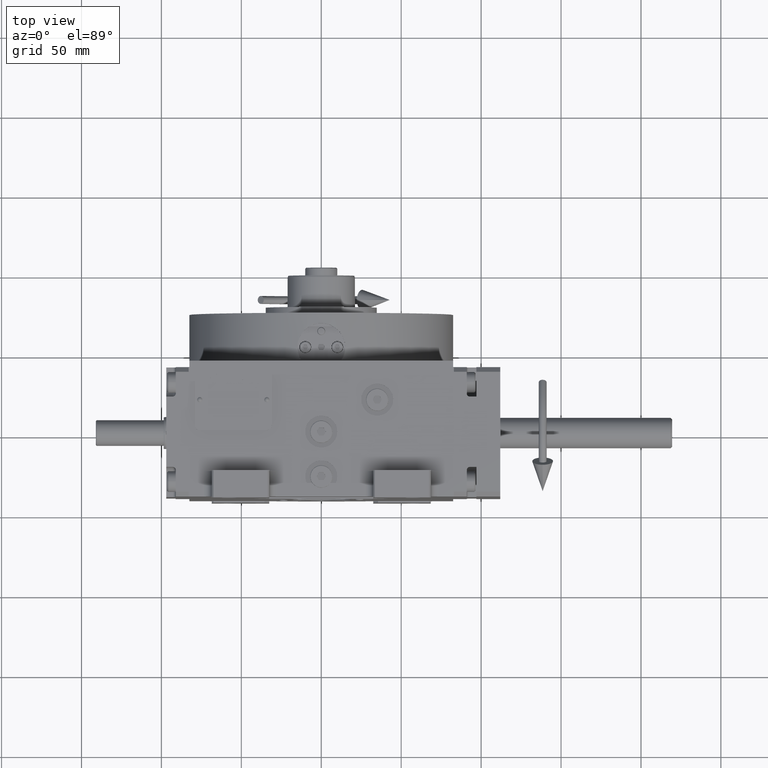
[diagram: clean part render]
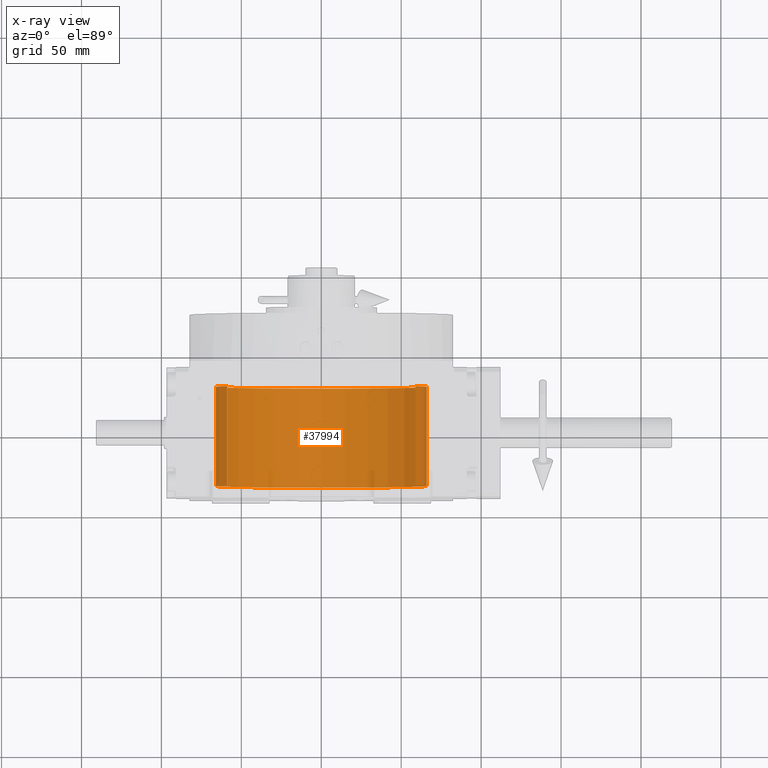
[diagram: x-ray — body ghosted, one internal face saturated and labeled with its STEP entity id]
A machine part, top view, then the same camera in x-ray: the body is ghosted and one INTERNAL B-rep face — a face not visible from any outside direction — is saturated and labeled: STEP entity #37994.
In plain terms, the highlighted cylindrical surface (partial cylindrical patch) has radius 66 mm, axis along (0, 1, 0).
Its self-contained STEP definition (entity closure, byte-faithful):
#1858 = DIRECTION ( 'NONE',  ( 0.000000000000000000, 0.000000000000000000, 1.000000000000000000 ) ) ;
#4154 = ORIENTED_EDGE ( 'NONE', *, *, #35560, .F. ) ;
#5475 = VERTEX_POINT ( 'NONE', #45441 ) ;
#6097 = EDGE_CURVE ( 'NONE', #17162, #5475, #61225, .T. ) ;
#7596 = EDGE_LOOP ( 'NONE', ( #24803, #4154, #48030, #25328 ) ) ;
#10376 = CARTESIAN_POINT ( 'NONE',  ( -58.78775382679628336, 30.00000000000001421, 30.00000000000000000 ) ) ;
#11848 = DIRECTION ( 'NONE',  ( -0.000000000000000000, 1.000000000000000000, -0.000000000000000000 ) ) ;
#12242 = CARTESIAN_POINT ( 'NONE',  ( 0.000000000000000000, 30.00000000000001421, 0.000000000000000000 ) ) ;
#14821 = DIRECTION ( 'NONE',  ( 0.000000000000000000, -1.000000000000000000, 0.000000000000000000 ) ) ;
#15858 = LINE ( 'NONE', #21097, #53240 ) ;
#17162 = VERTEX_POINT ( 'NONE', #35264 ) ;
#21097 = CARTESIAN_POINT ( 'NONE',  ( -58.78775382679628336, 111.8035300579860802, 30.00000000000000000 ) ) ;
#22425 = DIRECTION ( 'NONE',  ( -0.000000000000000000, 1.000000000000000000, -0.000000000000000000 ) ) ;
#23073 = VERTEX_POINT ( 'NONE', #68271 ) ;
#23988 = DIRECTION ( 'NONE',  ( -0.000000000000000000, 1.000000000000000000, -0.000000000000000000 ) ) ;
#24803 = ORIENTED_EDGE ( 'NONE', *, *, #44544, .T. ) ;
#25328 = ORIENTED_EDGE ( 'NONE', *, *, #64789, .T. ) ;
#26039 = CARTESIAN_POINT ( 'NONE',  ( 0.000000000000000000, -31.99999999999998579, 0.000000000000000000 ) ) ;
#27918 = VECTOR ( 'NONE', #23988, 1000.000000000000000 ) ;
#33453 = CARTESIAN_POINT ( 'NONE',  ( 58.78775382679628336, 111.8035300579860802, 30.00000000000000000 ) ) ;
#33457 = CYLINDRICAL_SURFACE ( 'NONE', #56062, 66.00000000000000000 ) ;
#33660 = DIRECTION ( 'NONE',  ( 0.000000000000000000, 0.000000000000000000, 1.000000000000000000 ) ) ;
#34498 = CARTESIAN_POINT ( 'NONE',  ( 0.000000000000000000, 111.8035300579860802, 0.000000000000000000 ) ) ;
#35264 = CARTESIAN_POINT ( 'NONE',  ( 58.78775382679628336, -31.99999999999998579, 30.00000000000000000 ) ) ;
#35560 = EDGE_CURVE ( 'NONE', #17162, #23073, #38221, .T. ) ;
#37680 = CIRCLE ( 'NONE', #55658, 66.00000000000000000 ) ;
#37994 = ADVANCED_FACE ( 'NONE', ( #39052 ), #33457, .F. ) ;
#38221 = CIRCLE ( 'NONE', #52844, 66.00000000000000000 ) ;
#39052 = FACE_OUTER_BOUND ( 'NONE', #7596, .T. ) ;
#44544 = EDGE_CURVE ( 'NONE', #60772, #23073, #15858, .T. ) ;
#45441 = CARTESIAN_POINT ( 'NONE',  ( 58.78775382679628336, 30.00000000000001421, 30.00000000000000000 ) ) ;
#47448 = DIRECTION ( 'NONE',  ( 0.000000000000000000, 0.000000000000000000, 1.000000000000000000 ) ) ;
#48030 = ORIENTED_EDGE ( 'NONE', *, *, #6097, .T. ) ;
#49978 = DIRECTION ( 'NONE',  ( -0.000000000000000000, 1.000000000000000000, -0.000000000000000000 ) ) ;
#52844 = AXIS2_PLACEMENT_3D ( 'NONE', #26039, #11848, #47448 ) ;
#53240 = VECTOR ( 'NONE', #14821, 1000.000000000000000 ) ;
#55658 = AXIS2_PLACEMENT_3D ( 'NONE', #12242, #22425, #33660 ) ;
#56062 = AXIS2_PLACEMENT_3D ( 'NONE', #34498, #49978, #1858 ) ;
#60772 = VERTEX_POINT ( 'NONE', #10376 ) ;
#61225 = LINE ( 'NONE', #33453, #27918 ) ;
#64789 = EDGE_CURVE ( 'NONE', #5475, #60772, #37680, .T. ) ;
#68271 = CARTESIAN_POINT ( 'NONE',  ( -58.78775382679628336, -31.99999999999998579, 30.00000000000000000 ) ) ;